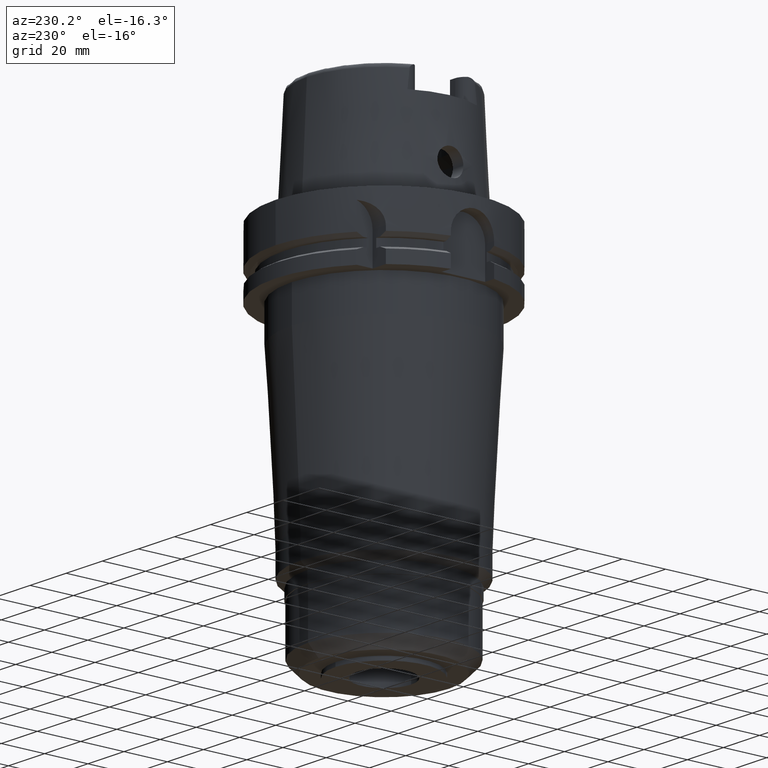
[diagram: clean part render]
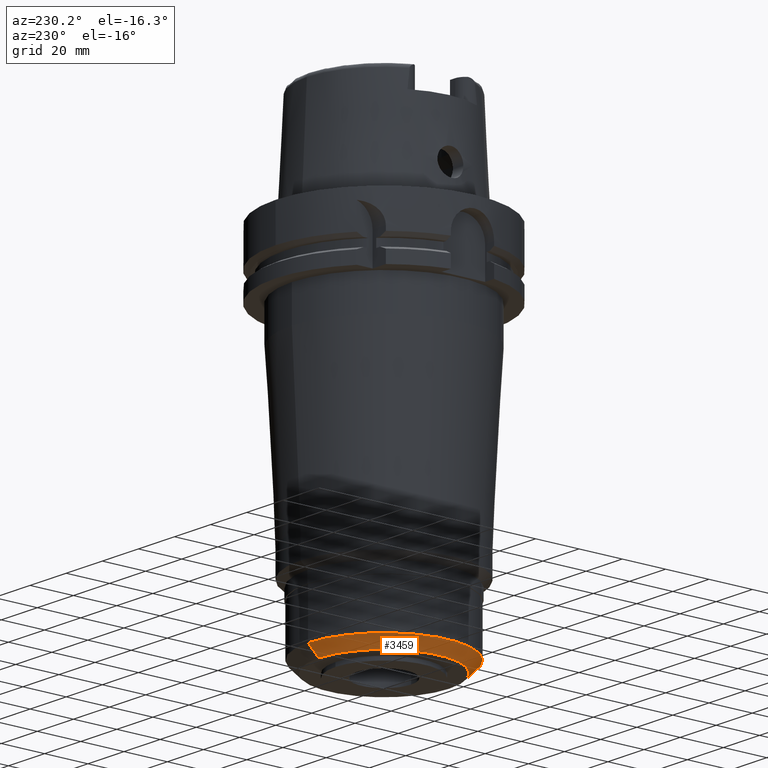
[diagram: same view with one face highlighted and labeled with its STEP entity id]
A machine part, auxiliary view. The second image highlights one B-rep face of the part: STEP entity #3459.
In plain terms, the highlighted conical surface has half-angle 45 deg.
Its self-contained STEP definition (entity closure, byte-faithful):
#1067=CARTESIAN_POINT('',(0.E0,0.E0,-1.656E2));
#1068=DIRECTION('',(0.E0,0.E0,1.E0));
#1069=DIRECTION('',(0.E0,1.E0,0.E0));
#1070=AXIS2_PLACEMENT_3D('',#1067,#1068,#1069);
#1091=DIRECTION('',(0.E0,-7.071067811865E-1,-7.071067811865E-1));
#1092=VECTOR('',#1091,6.788225099391E0);
#1093=CARTESIAN_POINT('',(0.E0,3.5E1,-1.608E2));
#1094=LINE('',#1093,#1092);
#1106=CARTESIAN_POINT('',(0.E0,0.E0,-1.608E2));
#1107=DIRECTION('',(0.E0,0.E0,1.E0));
#1108=DIRECTION('',(0.E0,1.E0,0.E0));
#1109=AXIS2_PLACEMENT_3D('',#1106,#1107,#1108);
#1114=DIRECTION('',(0.E0,7.071067811865E-1,-7.071067811865E-1));
#1115=VECTOR('',#1114,6.788225099391E0);
#1116=CARTESIAN_POINT('',(0.E0,-3.5E1,-1.608E2));
#1117=LINE('',#1116,#1115);
#2481=CARTESIAN_POINT('',(0.E0,-3.02E1,-1.656E2));
#2482=CARTESIAN_POINT('',(0.E0,3.02E1,-1.656E2));
#2483=VERTEX_POINT('',#2481);
#2484=VERTEX_POINT('',#2482);
#2485=CARTESIAN_POINT('',(0.E0,3.5E1,-1.608E2));
#2486=VERTEX_POINT('',#2485);
#2487=CARTESIAN_POINT('',(0.E0,-3.5E1,-1.608E2));
#2488=VERTEX_POINT('',#2487);
#3447=CARTESIAN_POINT('',(0.E0,0.E0,-1.632E2));
#3448=DIRECTION('',(0.E0,0.E0,1.E0));
#3449=DIRECTION('',(0.E0,1.E0,0.E0));
#3450=AXIS2_PLACEMENT_3D('',#3447,#3448,#3449);
#3451=CONICAL_SURFACE('',#3450,3.26E1,4.5E1);
#3452=ORIENTED_EDGE('',*,*,#3437,.F.);
#3454=ORIENTED_EDGE('',*,*,#3453,.T.);
#3455=ORIENTED_EDGE('',*,*,#3440,.T.);
#3456=ORIENTED_EDGE('',*,*,#3423,.F.);
#3457=EDGE_LOOP('',(#3452,#3454,#3455,#3456));
#3458=FACE_OUTER_BOUND('',#3457,.F.);
#1071=CIRCLE('',#1070,3.02E1);
#1110=CIRCLE('',#1109,3.5E1);
#3423=EDGE_CURVE('',#2484,#2483,#1071,.T.);
#3437=EDGE_CURVE('',#2486,#2484,#1094,.T.);
#3440=EDGE_CURVE('',#2488,#2483,#1117,.T.);
#3453=EDGE_CURVE('',#2486,#2488,#1110,.T.);
#3459=ADVANCED_FACE('',(#3458),#3451,.T.);